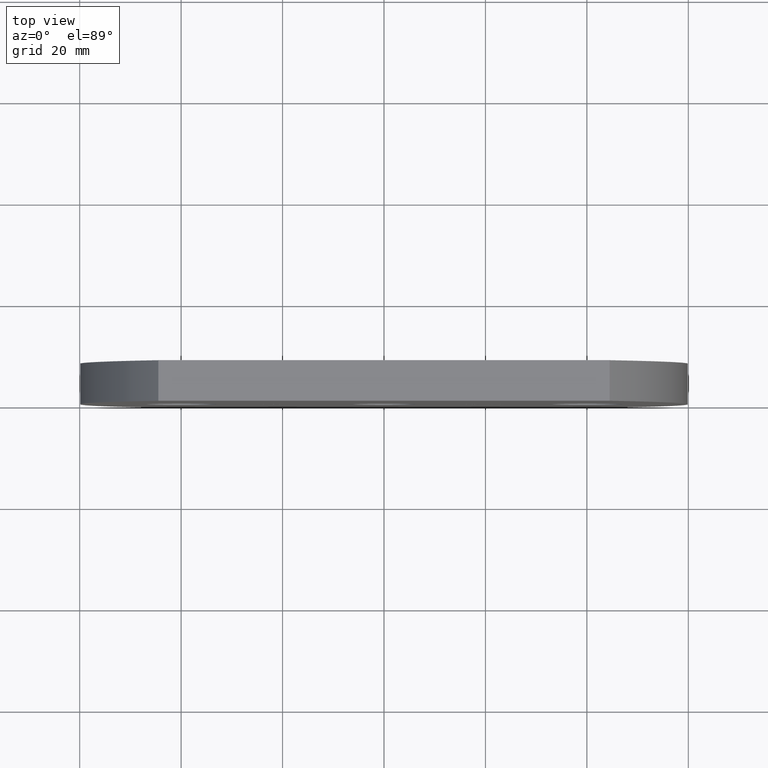
[diagram: clean part render]
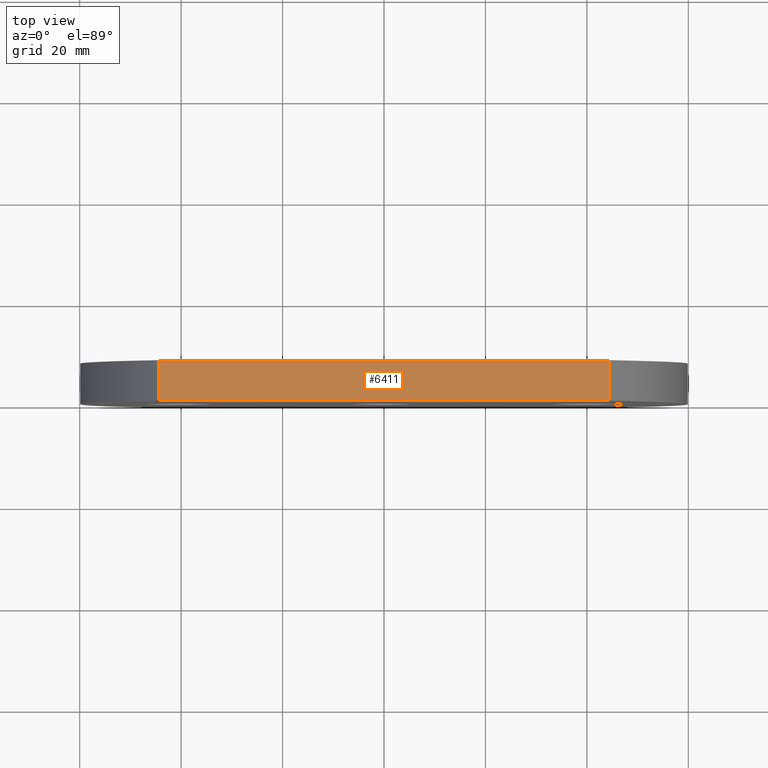
[diagram: same view with one face highlighted and labeled with its STEP entity id]
A machine part, top view. The second image highlights one B-rep face of the part: STEP entity #6411.
In plain terms, the highlighted planar face has unit normal (-0, 0, -1).
Its self-contained STEP definition (entity closure, byte-faithful):
#933 = DIRECTION ( 'NONE',  ( -0.0000000000000000000, -1.000000000000000000, -0.0000000000000000000 ) ) ;
#1438 = VECTOR ( 'NONE', #6629, 1000.000000000000000 ) ;
#1496 = CARTESIAN_POINT ( 'NONE',  ( -44.49999999999994300, 8.000000000000000000, 40.00000000000000700 ) ) ;
#1776 = DIRECTION ( 'NONE',  ( -0.0000000000000000000, -1.000000000000000000, -0.0000000000000000000 ) ) ;
#1777 = EDGE_CURVE ( 'NONE', #7680, #9991, #3817, .T. ) ;
#2009 = CARTESIAN_POINT ( 'NONE',  ( -44.49999999999994300, 8.000000000000000000, 40.00000000000000700 ) ) ;
#2132 = ORIENTED_EDGE ( 'NONE', *, *, #9734, .F. ) ;
#2424 = VECTOR ( 'NONE', #4799, 1000.000000000000000 ) ;
#2573 = VERTEX_POINT ( 'NONE', #2009 ) ;
#2880 = VECTOR ( 'NONE', #1776, 1000.000000000000000 ) ;
#2928 = CARTESIAN_POINT ( 'NONE',  ( 44.50000000000005700, 0.0000000000000000000, 39.99999999999999300 ) ) ;
#2987 = CARTESIAN_POINT ( 'NONE',  ( 44.50000000000005700, 8.000000000000000000, 39.99999999999999300 ) ) ;
#3168 = LINE ( 'NONE', #3522, #1438 ) ;
#3273 = CARTESIAN_POINT ( 'NONE',  ( -44.49999999999994300, 8.000000000000000000, 40.00000000000000700 ) ) ;
#3341 = FACE_OUTER_BOUND ( 'NONE', #8398, .T. ) ;
#3522 = CARTESIAN_POINT ( 'NONE',  ( -44.49999999999994300, 0.0000000000000000000, 40.00000000000000700 ) ) ;
#3696 = EDGE_CURVE ( 'NONE', #8393, #9991, #3168, .T. ) ;
#3733 = LINE ( 'NONE', #8831, #2880 ) ;
#3817 = LINE ( 'NONE', #6371, #5740 ) ;
#3842 = PLANE ( 'NONE',  #8252 ) ;
#4231 = ORIENTED_EDGE ( 'NONE', *, *, #3696, .T. ) ;
#4356 = ORIENTED_EDGE ( 'NONE', *, *, #1777, .F. ) ;
#4799 = DIRECTION ( 'NONE',  ( 1.000000000000000000, 0.0000000000000000000, -1.559302000878029000E-016 ) ) ;
#5740 = VECTOR ( 'NONE', #933, 1000.000000000000000 ) ;
#6075 = EDGE_CURVE ( 'NONE', #2573, #8393, #3733, .T. ) ;
#6269 = ORIENTED_EDGE ( 'NONE', *, *, #6075, .T. ) ;
#6371 = CARTESIAN_POINT ( 'NONE',  ( 44.50000000000005700, 8.000000000000000000, 39.99999999999999300 ) ) ;
#6411 = ADVANCED_FACE ( 'NONE', ( #3341 ), #3842, .F. ) ;
#6629 = DIRECTION ( 'NONE',  ( 1.000000000000000000, 0.0000000000000000000, -1.559302000878029000E-016 ) ) ;
#6946 = DIRECTION ( 'NONE',  ( -1.000000000000000000, 0.0000000000000000000, 1.559302000878029000E-016 ) ) ;
#7680 = VERTEX_POINT ( 'NONE', #2987 ) ;
#8252 = AXIS2_PLACEMENT_3D ( 'NONE', #1496, #8551, #6946 ) ;
#8352 = CARTESIAN_POINT ( 'NONE',  ( -44.49999999999994300, 0.0000000000000000000, 40.00000000000000700 ) ) ;
#8393 = VERTEX_POINT ( 'NONE', #8352 ) ;
#8398 = EDGE_LOOP ( 'NONE', ( #4231, #4356, #2132, #6269 ) ) ;
#8551 = DIRECTION ( 'NONE',  ( -1.559302000878029000E-016, 0.0000000000000000000, -1.000000000000000000 ) ) ;
#8831 = CARTESIAN_POINT ( 'NONE',  ( -44.49999999999994300, 8.000000000000000000, 40.00000000000000700 ) ) ;
#9127 = LINE ( 'NONE', #3273, #2424 ) ;
#9734 = EDGE_CURVE ( 'NONE', #2573, #7680, #9127, .T. ) ;
#9991 = VERTEX_POINT ( 'NONE', #2928 ) ;